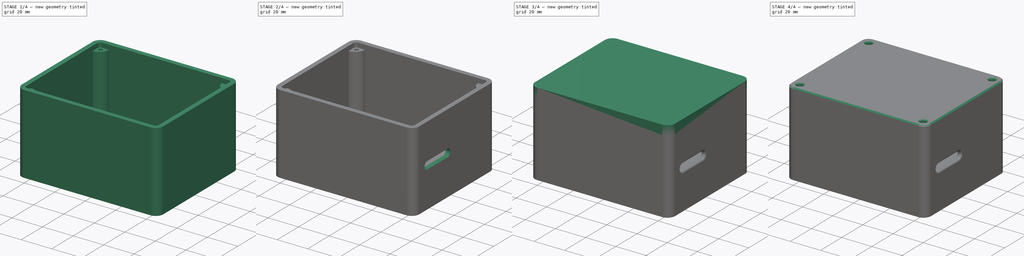
[diagram: build sequence overview — one tinted view per stage of 4, left to right]
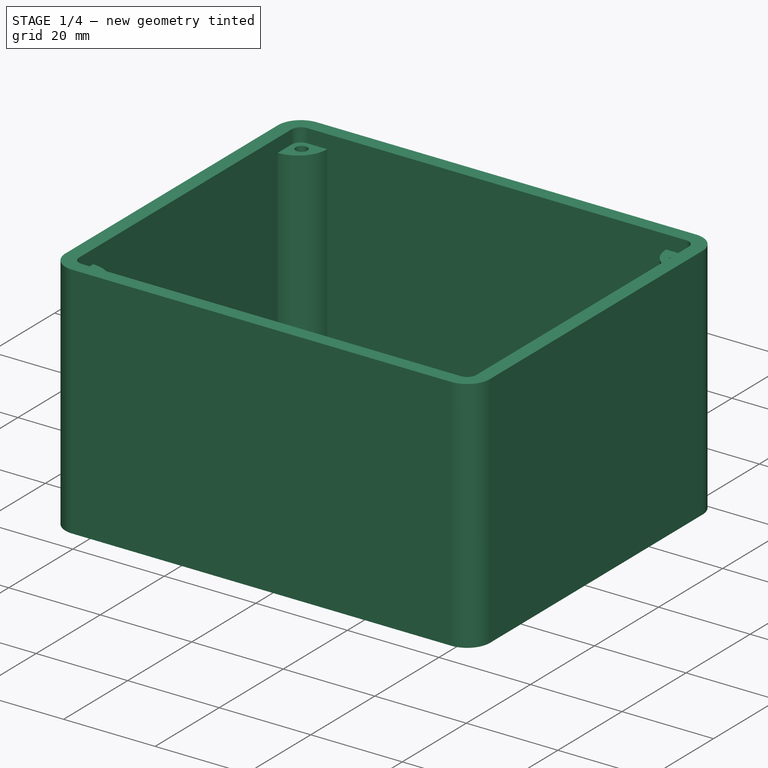
[diagram: stage 1 of 4 — iso view after this stage's code; geometry added in this stage tinted green]
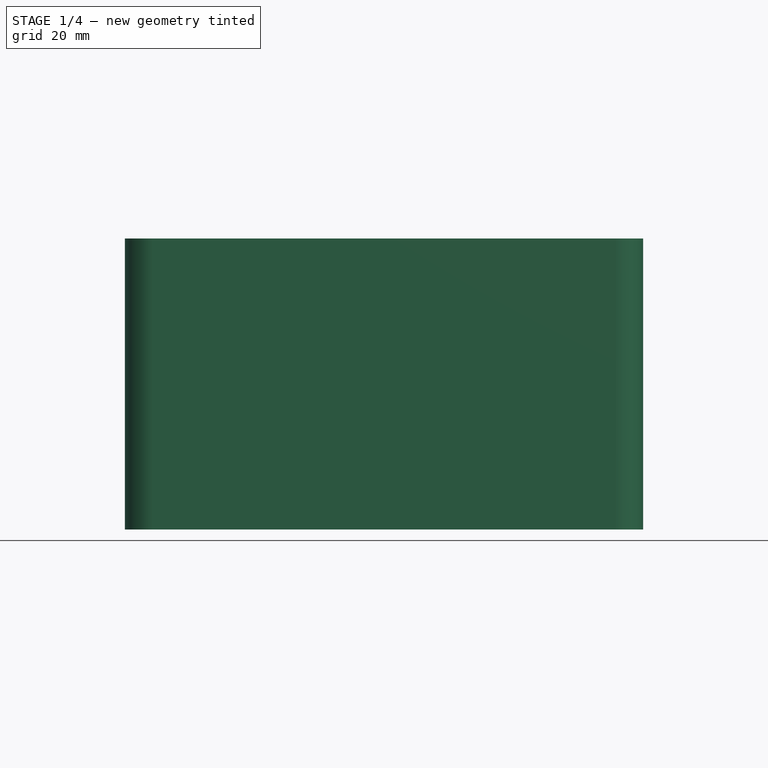
[diagram: stage 1 of 4 — front view after this stage's code; geometry added in this stage tinted green]
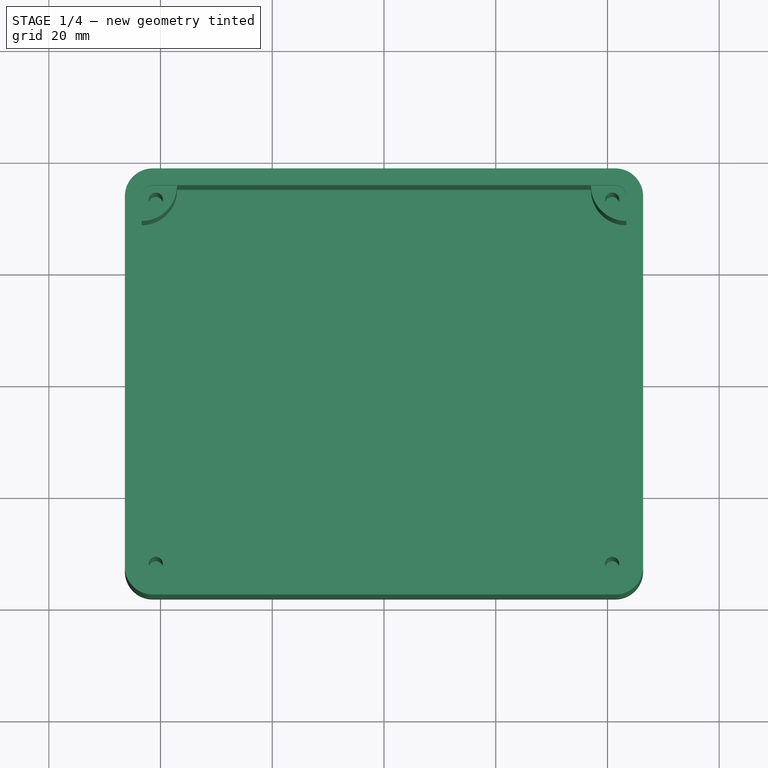
[diagram: stage 1 of 4 — top view after this stage's code; geometry added in this stage tinted green]
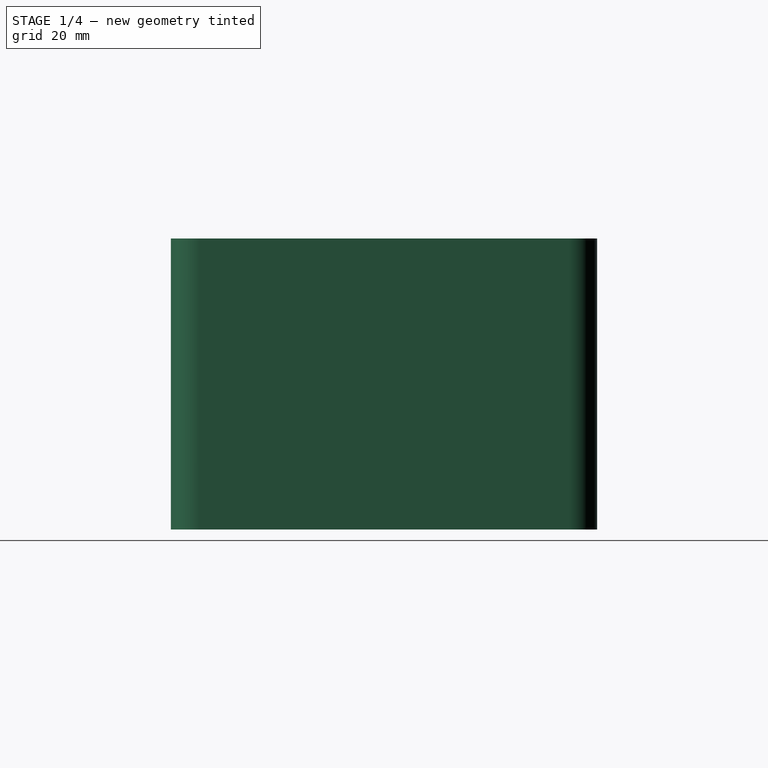
[diagram: stage 1 of 4 — right view after this stage's code; geometry added in this stage tinted green]
FCSTD DOCUMENT  (FreeCAD 0.19R24267 +99 (Git))
Label: electonics_box
License: All rights reserved
LicenseURL: http://en.wikipedia.org/wiki/All_rights_reserved
objects: Sketcher::SketchObject×9, PartDesign::Pad×5, PartDesign::Mirrored×4, PartDesign::Pocket×3, PartDesign::MultiTransform×2, PartDesign::Hole×2, PartDesign::Body×2, Spreadsheet::Sheet×1, PartDesign::Chamfer×1, PartDesign::Fillet×1, App::Part×1
note: 41 computed .brp shape members not serialized (recipe doc carries the construction recipe); baked Part::Feature solids carry a one-line shape summary decoded from their .brp

FEATURE [Spreadsheet::Sheet] Spreadsheet
  cells = A2=box_length; B2(box_length)==B13 + 2 * B7; C2=calculated; A3=box_width; B3(box_width)==B14 + 2 * B7; C3=calculated; A4=box_height; B4(box_height)==B15 + B16 + B7; C4=calculated; A5=outside_radius; B5(outside_radius)==B7 + 2; C5=calculated; A6=inside_radius; B6(inside_radius)==B5 - B7; C6=calculated; A7=box_wall_thickness; B7(box_wall_thickness)=3; A8=hole_diameter; B8(hole_diameter)=2.54; A9=lug_height; B9(lug_height)==B4 - B7 - B16; C9=calculated; A10=lug_radius; B10(lug_radius)==B8 * 2.5; C10=calculated; A11=hole_center_length; B11(hole_center_length)==B13 / 2 - B8; C11=calculated; A12=hole_center_width; B12(hole_center_width)==B14 / 2 - B8; C12=calculated; A13=box_inside_length; B13(box_inside_length)=86.77; A14=box_inside_width; B14(box_inside_width)=70.29000000000001; A15=box_inside_height; B15(box_inside_height)=45.1; A16=box_bottom_thickness; B16(box_bottom_thickness)=4; A18=clearance_sides; B18(clearance_sides)=0.2; A19=clearance_hole; B19(clearance_hole)=4.1; A20=lid_height; B20(lid_height)=6.25; A22=mount_hole_diameter; B22(mount_hole_diameter)=1.27; C22=1.27; A23=mount_hole_lug_height; B23(mount_hole_lug_height)=8; A24=mount_hole_lug_diameter; B24(mount_hole_lug_diameter)==3 * B22; C24=calculated; A25=mount_hole1_x; B25(mount_hole1_x)=0; A26=mount_hole1_y; B26(mount_hole1_y)=32.47; A27=mount_hole2_x; B27(mount_hole2_x)=40.3; A28=mount_hole2_y; B28(mount_hole2_y)=0; A29=mount_hole3_x; B29(mount_hole3_x)=0; A30=mount_hole3_y; B30(mount_hole3_y)=31.3; A31=mount_hole4_x; B31(mount_hole4_x)=40.233; A32=mount_hole4_y; B32(mount_hole4_y)=0
FEATURE [Sketcher::SketchObject] Sketch  label="box outside"
  AttachmentOffset = pos=(0,0,-4) rot=(0,0,1;0rad)
  FullyConstrained = true
  MapMode = 5
  Placement = pos=(0,0,-4) rot=(0,0,1;0rad)
  Support = -> [XY_Plane001]
  expr: .AttachmentOffset.Base.z = -Spreadsheet.box_bottom_thickness
  expr: Constraints[18] = Spreadsheet.outside_radius
  expr: Constraints[17] = Spreadsheet.box_width
  expr: Constraints[16] = Spreadsheet.box_length
  sketch-geometry (8):
    g0: LineSegment StartX=-41.385 StartY=38.145 StartZ=0 EndX=41.385 EndY=38.145 EndZ=0
    g1: LineSegment StartX=46.385 StartY=33.145 StartZ=0 EndX=46.385 EndY=-33.145 EndZ=0
    g2: LineSegment StartX=41.385 StartY=-38.145 StartZ=0 EndX=-41.385 EndY=-38.145 EndZ=0
    g3: LineSegment StartX=-46.385 StartY=-33.145 StartZ=0 EndX=-46.385 EndY=33.145 EndZ=0
    g4: ArcOfCircle CenterX=-41.385 CenterY=33.145 CenterZ=0 NormalX=0 NormalY=0 NormalZ=1 AngleXU=0 Radius=5 StartAngle=1.5708 EndAngle=3.14159
    g5: ArcOfCircle CenterX=41.385 CenterY=33.145 CenterZ=0 NormalX=0 NormalY=0 NormalZ=1 AngleXU=0 Radius=5 StartAngle=0 EndAngle=1.5708
    g6: ArcOfCircle CenterX=41.385 CenterY=-33.145 CenterZ=0 NormalX=0 NormalY=0 NormalZ=1 AngleXU=0 Radius=5 StartAngle=4.71239 EndAngle=6.28319
    g7: ArcOfCircle CenterX=-41.385 CenterY=-33.145 CenterZ=0 NormalX=0 NormalY=0 NormalZ=1 AngleXU=0 Radius=5 StartAngle=3.14159 EndAngle=4.71239
  constraints (19):
    c: Horizontal(g0)
    c: Horizontal(g2)
    c: Vertical(g1)
    c: Vertical(g3)
    c: Tangent(g3,g4) = 1.5708
    c: Tangent(g0,g4) = 1.5708
    c: Tangent(g0,g5) = 1.5708
    c: Tangent(g1,g5) = 1.5708
    c: Tangent(g1,g6) = 1.5708
    c: Tangent(g2,g6) = 1.5708
    c: Tangent(g2,g7) = 1.5708
    c: Tangent(g3,g7) = 1.5708
    c: Equal(g0,g2)
    c: Equal(g3,g1)
    c: Symmetric(g6,g4,g-1)
    c: Equal(g4,g5)
    c: DistanceX(g3,g1) = 92.77
    c: DistanceY(g2,g0) = 76.29
    c: Radius(g4) = 5
FEATURE [PartDesign::Pad] Pad
  Direction = (1,1,1)
  Length = 52.1
  Length2 = 100
  Profile = -> Sketch
  Type = 0
  expr: Length = Spreadsheet.box_height
FEATURE [Sketcher::SketchObject] Sketch001  label="inside"
  FullyConstrained = true
  MapMode = 5
  Support = -> [XY_Plane001]
  expr: Constraints[18] = Spreadsheet.box_inside_width
  expr: Constraints[17] = Spreadsheet.box_inside_length
  expr: Constraints[16] = Spreadsheet.inside_radius
  sketch-geometry (8):
    g0: LineSegment StartX=-41.385 StartY=35.145 StartZ=0 EndX=41.385 EndY=35.145 EndZ=0
    g1: LineSegment StartX=43.385 StartY=33.145 StartZ=0 EndX=43.385 EndY=-33.145 EndZ=0
    g2: LineSegment StartX=41.385 StartY=-35.145 StartZ=0 EndX=-41.385 EndY=-35.145 EndZ=0
    g3: LineSegment StartX=-43.385 StartY=-33.145 StartZ=0 EndX=-43.385 EndY=33.145 EndZ=0
    g4: ArcOfCircle CenterX=-41.385 CenterY=33.145 CenterZ=0 NormalX=0 NormalY=0 NormalZ=1 AngleXU=0 Radius=2 StartAngle=1.5708 EndAngle=3.14159
    g5: ArcOfCircle CenterX=41.385 CenterY=33.145 CenterZ=0 NormalX=0 NormalY=0 NormalZ=1 AngleXU=0 Radius=2 StartAngle=8e-16 EndAngle=1.5708
    g6: ArcOfCircle CenterX=41.385 CenterY=-33.145 CenterZ=0 NormalX=0 NormalY=0 NormalZ=1 AngleXU=0 Radius=2 StartAngle=4.71239 EndAngle=6.28319
    g7: ArcOfCircle CenterX=-41.385 CenterY=-33.145 CenterZ=0 NormalX=0 NormalY=0 NormalZ=1 AngleXU=0 Radius=2 StartAngle=3.14159 EndAngle=4.71239
  constraints (19):
    c: Horizontal(g0)
    c: Horizontal(g2)
    c: Vertical(g1)
    c: Vertical(g3)
    c: Tangent(g3,g4) = 1.5708
    c: Tangent(g0,g4) = 1.5708
    c: Tangent(g0,g5) = 1.5708
    c: Tangent(g1,g5) = 1.5708
    c: Tangent(g1,g6) = 1.5708
    c: Tangent(g2,g6) = 1.5708
    c: Tangent(g2,g7) = 1.5708
    c: Tangent(g3,g7) = 1.5708
    c: Equal(g0,g2)
    c: Equal(g3,g1)
    c: Equal(g4,g5)
    c: Symmetric(g4,g6,g-1)
    c: Radius(g4) = 2
    c: DistanceX(g3,g1) = 86.77
    c: DistanceY(g2,g0) = 70.29
FEATURE [PartDesign::Pocket] Pocket  label="Inside Pocket"
  BaseFeature = -> Pad
  Length = 5
  Length2 = 100
  Profile = -> Sketch001
  Reversed = true
  Type = 1
FEATURE [Sketcher::SketchObject] Sketch002  label="box Lugs for lid"
  FullyConstrained = true
  MapMode = 5
  Support = -> [XY_Plane001]
  expr: Constraints[9] = Spreadsheet.hole_center_length
  expr: Constraints[8] = Spreadsheet.hole_diameter
  expr: Constraints[7] = Spreadsheet.hole_diameter
  expr: Constraints[6] = Spreadsheet.hole_diameter
  expr: Constraints[10] = Spreadsheet.hole_center_width
  expr: Constraints[5] = Spreadsheet.lug_radius
  sketch-geometry (4):
    g0: LineSegment StartX=-37.035 StartY=35.145 StartZ=0 EndX=-43.385 EndY=35.145 EndZ=0
    g1: LineSegment StartX=-43.385 StartY=35.145 StartZ=0 EndX=-43.385 EndY=28.795 EndZ=0
    g2: ArcOfCircle CenterX=-43.385 CenterY=35.145 CenterZ=0 NormalX=0 NormalY=0 NormalZ=1 AngleXU=0 Radius=6.35 StartAngle=4.71239 EndAngle=6.28319
    g3: Circle CenterX=-40.845 CenterY=32.605 CenterZ=0 NormalX=0 NormalY=0 NormalZ=1 AngleXU=0 Radius=1.27
  constraints (12):
    c: Horizontal(g0)
    c: Coincident(g0,g1)
    c: Coincident(g2,g0)
    c: Coincident(g2,g1)
    c: Coincident(g2,g0)
    c: Radius(g2) = 6.35
    c: Diameter(g3) = 2.54
    c: DistanceY(g3,g0) = 2.54
    c: DistanceX(g0,g3) = 2.54
    c: DistanceX(g3,g-1) = 40.845
    c: DistanceY(g-1,g3) = 32.605
    c: Perpendicular(g0,g1)
FEATURE [PartDesign::Pad] Pad001
  BaseFeature = -> Pocket
  Direction = (1,1,1)
  Length = 45.1
  Length2 = 100
  Profile = -> Sketch002
  Type = 0
  expr: Length = Spreadsheet.lug_height
FEATURE [PartDesign::Mirrored] Mirrored  label="Mirror Left to Right"
  MirrorPlane = -> Sketch002 [V_Axis]
FEATURE [PartDesign::Mirrored] Mirrored001  label="Mirror Top to Bottom"
  MirrorPlane = -> Sketch002 [H_Axis]
FEATURE [PartDesign::MultiTransform] MultiTransform  label="duplicate lugs"
  BaseFeature = -> Pad001
  Originals = -> [Pad001]
  Transformations = -> [Mirrored,Mirrored001]
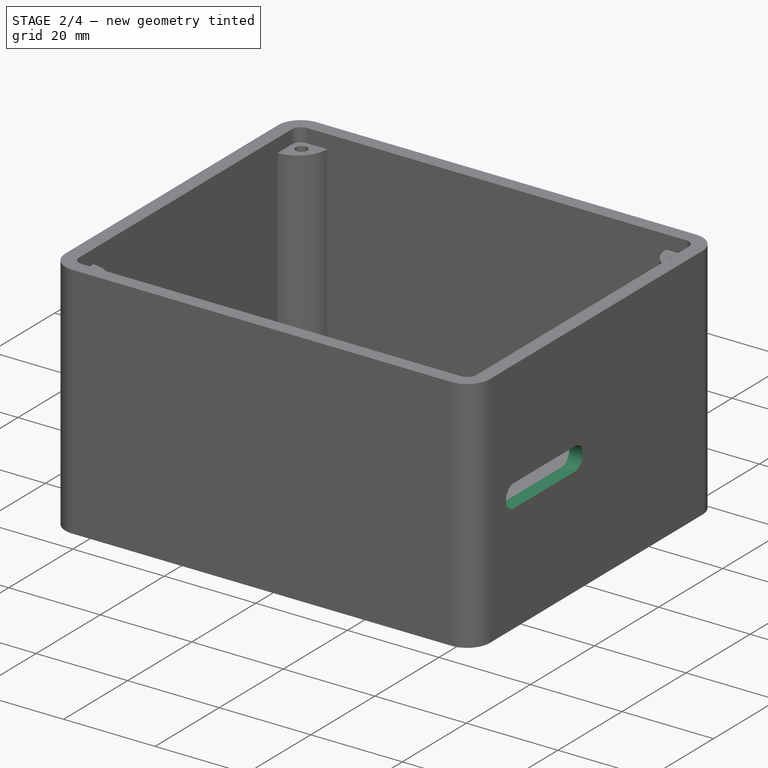
[diagram: stage 2 of 4 — iso view after this stage's code; geometry added in this stage tinted green]
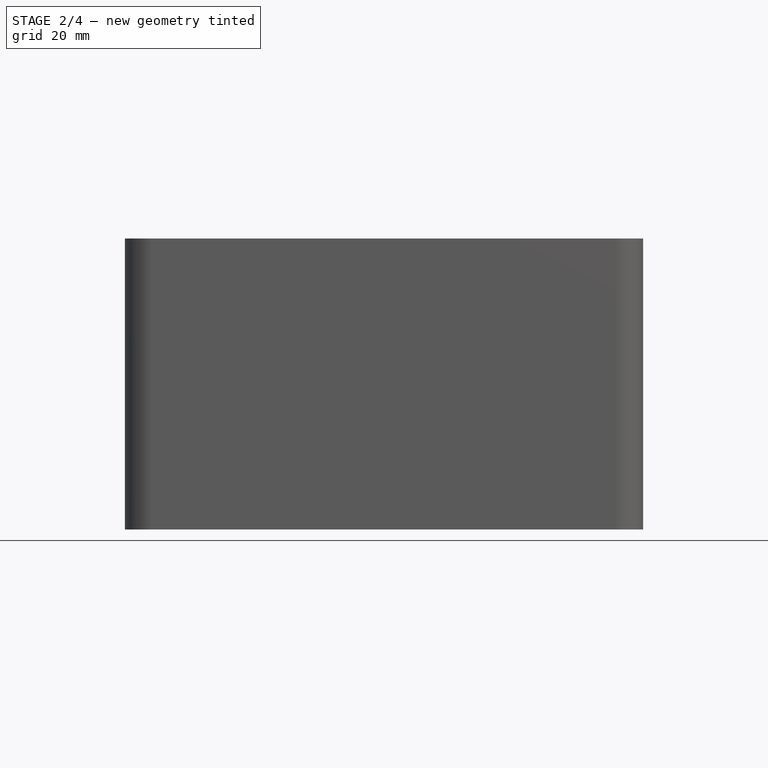
[diagram: stage 2 of 4 — front view after this stage's code; geometry added in this stage tinted green]
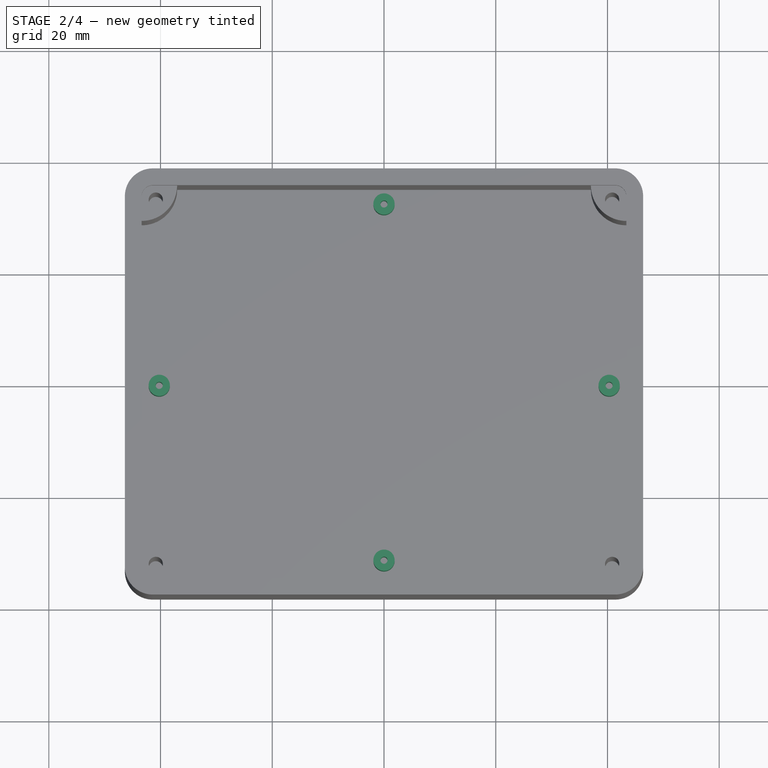
[diagram: stage 2 of 4 — top view after this stage's code; geometry added in this stage tinted green]
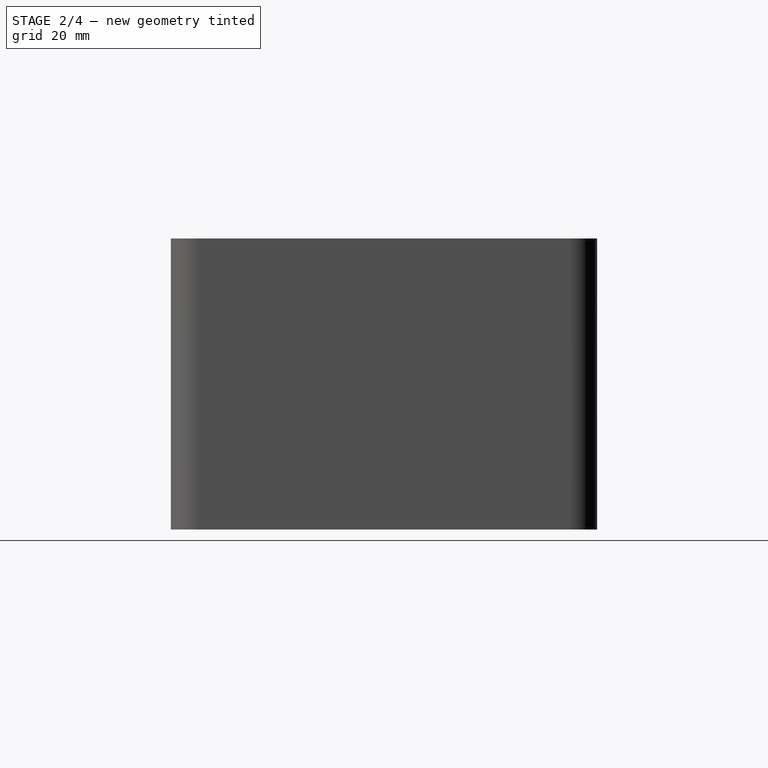
[diagram: stage 2 of 4 — right view after this stage's code; geometry added in this stage tinted green]
FEATURE [Sketcher::SketchObject] Sketch006  label="PCB mount Screw Holes"
  FullyConstrained = true
  MapMode = 5
  Support = -> [XY_Plane001]
  expr: Constraints[11] = Spreadsheet.mount_hole1_x
  expr: Constraints[10] = Spreadsheet.mount_hole_lug_diameter
  expr: Constraints[2] = Spreadsheet.mount_hole4_y
  expr: Constraints[5] = Spreadsheet.mount_hole2_y
  expr: Constraints[9] = Spreadsheet.mount_hole_lug_diameter
  expr: Constraints[4] = Spreadsheet.mount_hole4_x
  expr: Constraints[3] = Spreadsheet.mount_hole2_x
  expr: Constraints[7] = Spreadsheet.mount_hole_lug_diameter
  expr: Constraints[0] = Spreadsheet.mount_hole1_y
  expr: Constraints[6] = Spreadsheet.mount_hole3_x
  expr: Constraints[8] = Spreadsheet.mount_hole_lug_diameter
  expr: Constraints[1] = Spreadsheet.mount_hole3_y
  sketch-geometry (4):
    g0: Circle CenterX=0 CenterY=32.47 CenterZ=0 NormalX=0 NormalY=0 NormalZ=1 AngleXU=0 Radius=1.905
    g1: Circle CenterX=0 CenterY=-31.3 CenterZ=0 NormalX=0 NormalY=0 NormalZ=1 AngleXU=0 Radius=1.905
    g2: Circle CenterX=40.3 CenterY=0 CenterZ=0 NormalX=0 NormalY=0 NormalZ=1 AngleXU=0 Radius=1.905
    g3: Circle CenterX=-40.233 CenterY=0 CenterZ=0 NormalX=0 NormalY=0 NormalZ=1 AngleXU=0 Radius=1.905
  constraints (12):
    c: DistanceY(g-1,g0) = 32.47
    c: DistanceY(g1,g-1) = 31.3
    c: DistanceY(g-1,g3) = 0
    c: DistanceX(g-1,g2) = 40.3
    c: DistanceX(g3,g-1) = 40.233
    c: DistanceY(g-1,g2) = 0
    c: DistanceX(g1,g-1) = 0
    c: Diameter(g2) = 3.81
    c: Diameter(g3) = 3.81
    c: Diameter(g1) = 3.81
    c: Diameter(g0) = 3.81
    c: DistanceX(g-1,g0) = 0
FEATURE [PartDesign::Pad] Pad004  label="Extend PCB Mount Lugs"
  BaseFeature = -> MultiTransform
  Direction = (1,1,1)
  Length = 8
  Length2 = 100
  Profile = -> Sketch006
  Type = 0
  expr: Length = Spreadsheet.mount_hole_lug_height
FEATURE [PartDesign::Hole] Hole001
  BaseFeature = -> Pad004
  Depth = 8
  DepthType = 0
  Diameter = 1.27
  DrillForDepth = false
  DrillPoint = 0
  DrillPointAngle = 118
  HoleCutCountersinkAngle = 90
  HoleCutCustomValues = true
  HoleCutDepth = 8
  HoleCutDiameter = 1.27
  HoleCutType = 0
  ModelActualThread = false
  Profile = -> Sketch006
  Reversed = true
  Tapered = false
  TaperedAngle = 90
  ThreadAngle = 0
  ThreadClass = 0
  ThreadCutOffInner = 0
  ThreadCutOffOuter = 0
  ThreadDirection = 0
  ThreadFit = 0
  ThreadPitch = 0
  ThreadSize = 0
  ThreadType = 0
  Threaded = false
  expr: Depth = Spreadsheet.mount_hole_lug_height
  expr: Diameter = Spreadsheet.mount_hole_diameter
  expr: HoleCutDepth = Spreadsheet.mount_hole_lug_height
  expr: HoleCutDiameter = Spreadsheet.mount_hole_diameter
FEATURE [Sketcher::SketchObject] Sketch007  label="Hole for BME Air Flow"
  AttachmentOffset = pos=(0,0,46.385) rot=(1,0,0;0rad)
  FullyConstrained = true
  MapMode = 5
  Placement = pos=(46.385,-1.03e-14,1.03e-14) rot=(0.57735,0.57735,0.57735;2.0944rad)
  Support = -> [YZ_Plane001]
  expr: .AttachmentOffset.Rotation.Axis.x = Spreadsheet.box_width / 2
  expr: .AttachmentOffset.Base.x = 0
  expr: .AttachmentOffset.Base.z = Spreadsheet.box_length / 2
  expr: .AttachmentOffset.Base.y = 0
  expr: Constraints[10] = Spreadsheet.mount_hole_lug_height + 14.22
  sketch-geometry (5):
    g0: ArcOfCircle CenterX=-25.69 CenterY=22.22 CenterZ=0 NormalX=0 NormalY=0 NormalZ=1 AngleXU=0 Radius=2.5 StartAngle=1.5708 EndAngle=4.71239
    g1: ArcOfCircle CenterX=-6.69 CenterY=22.22 CenterZ=0 NormalX=0 NormalY=0 NormalZ=1 AngleXU=0 Radius=2.5 StartAngle=4.71239 EndAngle=7.85398
    g2: LineSegment StartX=-25.69 StartY=19.72 StartZ=0 EndX=-6.69 EndY=19.72 EndZ=0
    g3: LineSegment StartX=-25.69 StartY=24.72 StartZ=0 EndX=-6.69 EndY=24.72 EndZ=0
    g4: GeomPoint X=-16.19 Y=22.22 Z=0
  constraints (11):
    c: Tangent(g0,g3) = 1.5708
    c: Tangent(g0,g2) = -1.5708
    c: Tangent(g2,g1) = -1.5708
    c: Tangent(g3,g1) = 1.5708
    c: Horizontal(g2)
    c: Equal(g0,g1)
    c: Symmetric(g0,g1,g4)
    c: DistanceX(g0,g1) = 19
    c: DistanceY(g0,g0) = 5
    c: DistanceX(g4,g-1) = 16.19
    c: DistanceY(g-1,g4) = 22.22
FEATURE [PartDesign::Pocket] Pocket002  label="Pocket BME Air Flow"
  BaseFeature = -> Hole001
  Length = 0
  Length2 = 100
  Profile = -> Sketch007
  Type = 2
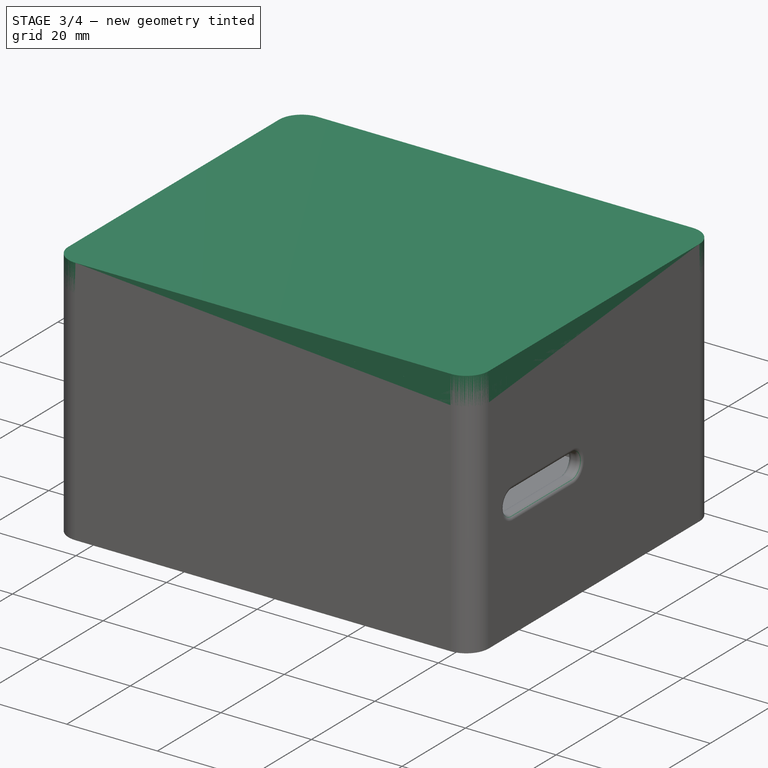
[diagram: stage 3 of 4 — iso view after this stage's code; geometry added in this stage tinted green]
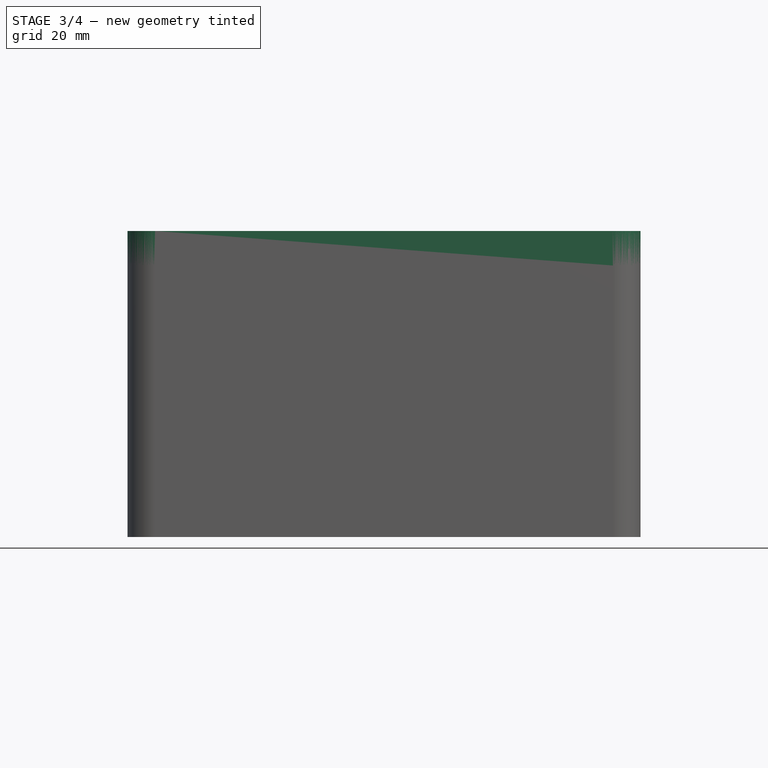
[diagram: stage 3 of 4 — front view after this stage's code; geometry added in this stage tinted green]
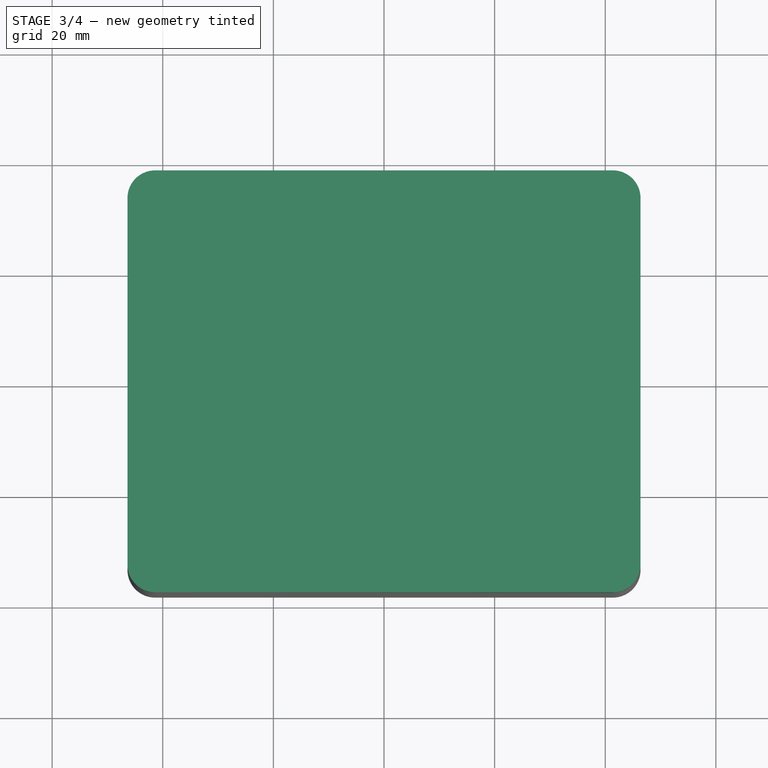
[diagram: stage 3 of 4 — top view after this stage's code; geometry added in this stage tinted green]
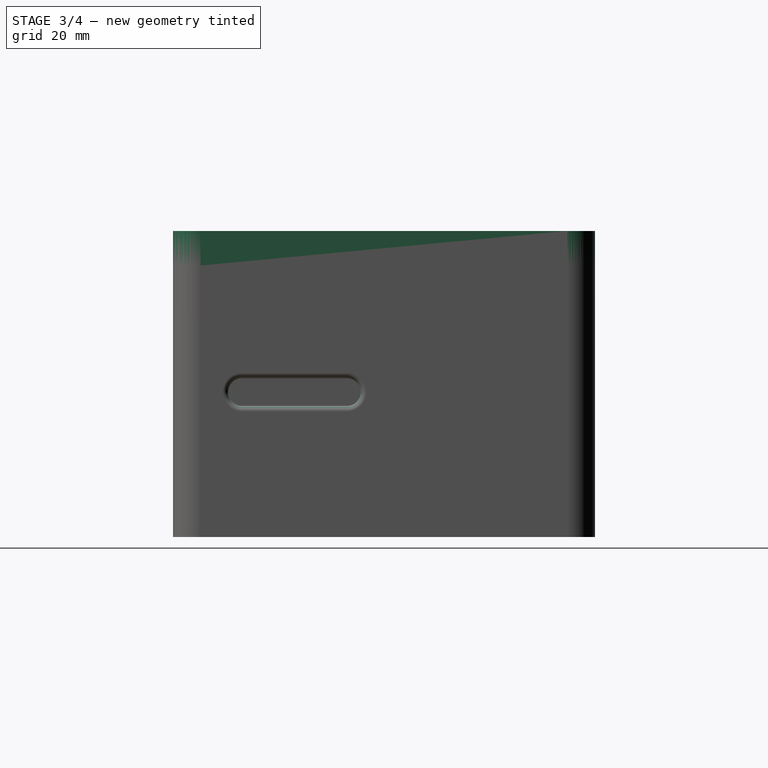
[diagram: stage 3 of 4 — right view after this stage's code; geometry added in this stage tinted green]
FEATURE [Sketcher::SketchObject] Sketch003  label="lid top"
  AttachmentOffset = pos=(0,0,45.1) rot=(0,0,1;0rad)
  FullyConstrained = true
  MapMode = 5
  Placement = pos=(0,0,45.1) rot=(0,0,1;0rad)
  Support = -> [XY_Plane002]
  expr: Constraints[15] = Spreadsheet.box_length
  expr: Constraints[16] = Spreadsheet.box_width
  expr: Constraints[18] = Spreadsheet.outside_radius
  expr: .AttachmentOffset.Base.z = Spreadsheet.box_inside_height
  sketch-geometry (8):
    g0: LineSegment StartX=-41.385 StartY=38.145 StartZ=0 EndX=41.385 EndY=38.145 EndZ=0
    g1: LineSegment StartX=46.385 StartY=33.145 StartZ=0 EndX=46.385 EndY=-33.145 EndZ=0
    g2: LineSegment StartX=41.385 StartY=-38.145 StartZ=0 EndX=-41.385 EndY=-38.145 EndZ=0
    g3: LineSegment StartX=-46.385 StartY=-33.145 StartZ=0 EndX=-46.385 EndY=33.145 EndZ=0
    g4: ArcOfCircle CenterX=-41.385 CenterY=33.145 CenterZ=0 NormalX=0 NormalY=0 NormalZ=1 AngleXU=0 Radius=5 StartAngle=1.5708 EndAngle=3.14159
    g5: ArcOfCircle CenterX=41.385 CenterY=33.145 CenterZ=0 NormalX=0 NormalY=0 NormalZ=1 AngleXU=0 Radius=5 StartAngle=-9e-16 EndAngle=1.5708
    g6: ArcOfCircle CenterX=41.385 CenterY=-33.145 CenterZ=0 NormalX=0 NormalY=0 NormalZ=1 AngleXU=0 Radius=5 StartAngle=4.71239 EndAngle=6.28319
    g7: ArcOfCircle CenterX=-41.385 CenterY=-33.145 CenterZ=0 NormalX=0 NormalY=0 NormalZ=1 AngleXU=0 Radius=5 StartAngle=3.14159 EndAngle=4.71239
  constraints (19):
    c: Horizontal(g0)
    c: Horizontal(g2)
    c: Vertical(g1)
    c: Vertical(g3)
    c: Tangent(g3,g4) = 1.5708
    c: Tangent(g0,g4) = 1.5708
    c: Tangent(g0,g5) = 1.5708
    c: Tangent(g1,g5) = 1.5708
    c: Tangent(g1,g6) = 1.5708
    c: Tangent(g2,g6) = 1.5708
    c: Tangent(g2,g7) = 1.5708
    c: Tangent(g3,g7) = 1.5708
    c: Equal(g0,g2)
    c: Equal(g1,g3)
    c: Equal(g4,g5)
    c: DistanceX(g3,g1) = 92.77
    c: DistanceY(g2,g0) = 76.29
    c: Symmetric(g4,g6,g-1)
    c: Radius(g4) = 5
FEATURE [PartDesign::Pad] Pad002  label="pad lid top"
  Direction = (1,1,1)
  Length = 6.25
  Length2 = 100
  Profile = -> Sketch003
  Type = 0
  expr: Length = Spreadsheet.lid_height
FEATURE [Sketcher::SketchObject] Sketch008  label="Hole for Charge Jack"
  AttachmentOffset = pos=(0,0,-46.385) rot=(0,0,1;0rad)
  FullyConstrained = true
  MapMode = 5
  Placement = pos=(-46.385,1.03e-14,-1.03e-14) rot=(0.57735,0.57735,0.57735;2.0944rad)
  Support = -> [YZ_Plane001]
  expr: .AttachmentOffset.Base.x = 0
  expr: .AttachmentOffset.Base.z = -Spreadsheet.box_length / 2
  sketch-geometry (1):
    g0: Circle CenterX=-13.1 CenterY=12.2 CenterZ=0 NormalX=0 NormalY=0 NormalZ=1 AngleXU=0 Radius=12
  constraints (3):
    c: Radius(g0) = 12
    c: DistanceX(g-1,g0) = -13.1
    c: DistanceY(g-1,g0) = 12.2
FEATURE [PartDesign::Hole] Hole002  label="Charge Jack Hole"
  BaseFeature = -> Pocket002
  Depth = 3
  DepthType = 0
  Diameter = 11
  DrillForDepth = false
  DrillPoint = 0
  DrillPointAngle = 118
  HoleCutCountersinkAngle = 90
  HoleCutCustomValues = false
  HoleCutDepth = 0
  HoleCutDiameter = 12
  HoleCutType = 0
  ModelActualThread = false
  Profile = -> Sketch008
  Reversed = true
  Tapered = false
  TaperedAngle = 90
  ThreadAngle = 0
  ThreadClass = 0
  ThreadCutOffInner = 0
  ThreadCutOffOuter = 0
  ThreadDirection = 0
  ThreadFit = 0
  ThreadPitch = 0
  ThreadSize = 0
  ThreadType = 0
  Threaded = false
  expr: Depth = Spreadsheet.box_wall_thickness
FEATURE [PartDesign::Body] Body001  label="lid"
  Group = -> [Sketch003,Pad002,Sketch004,Pad003,Sketch009,Pocket003,MultiTransform001,Mirrored002,Mirrored003,Chamfer001]
  Origin = -> Origin002
  Placement = pos=(0,0,10) rot=(0,0,1;0rad)
  Tip = -> Chamfer001
FEATURE [PartDesign::Fillet] Fillet001
  Base = -> Hole002 [Edge5,Edge30,Edge36,Edge39,Edge38,Edge37,Edge66,Edge63,Edge64,Edge65]
  BaseFeature = -> Hole002
  Radius = 1
  SupportTransform = false
FEATURE [PartDesign::Body] Body  label="box"
  Group = -> [Sketch,Pad,Sketch001,Pocket,Sketch002,Pad001,MultiTransform,Mirrored,Mirrored001,Sketch006,Pad004,Hole001,Sketch007,Pocket002,Sketch008,Hole002,Fillet001]
  Origin = -> Origin001
  Tip = -> Fillet001
FEATURE [App::Part] Part
  Group = -> [Body]
  Origin = -> Origin
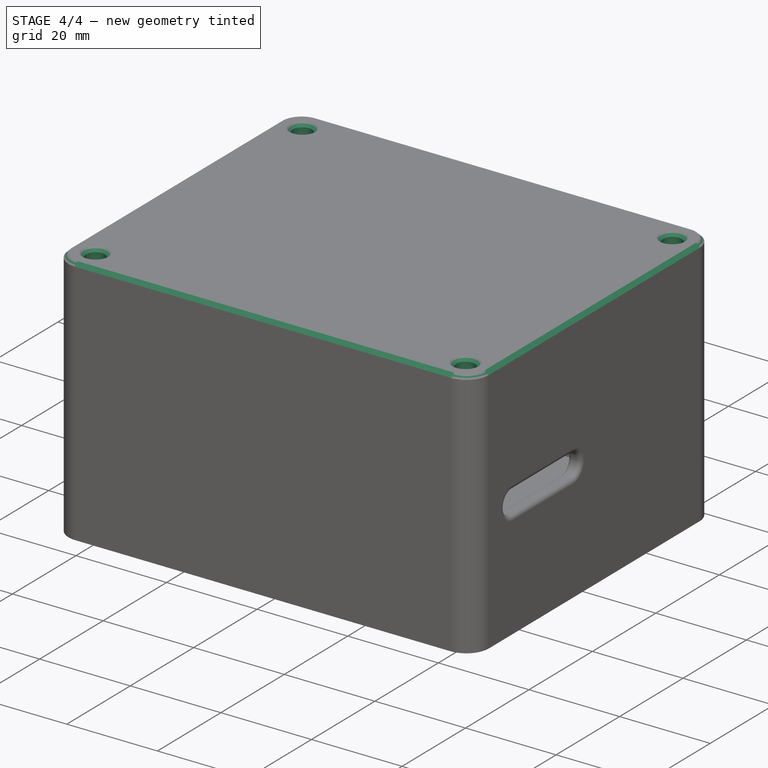
[diagram: stage 4 of 4 — iso view after this stage's code; geometry added in this stage tinted green]
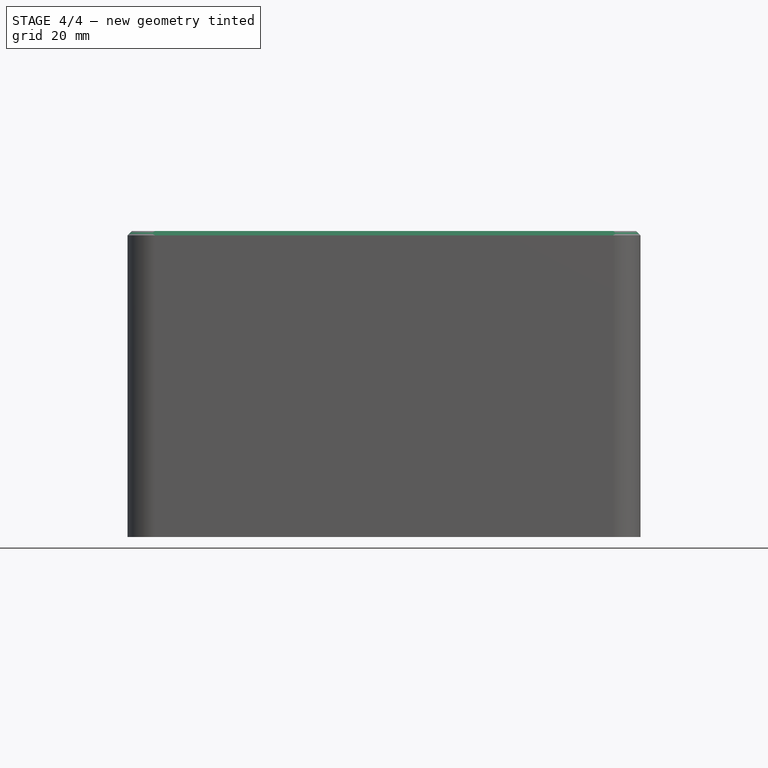
[diagram: stage 4 of 4 — front view after this stage's code; geometry added in this stage tinted green]
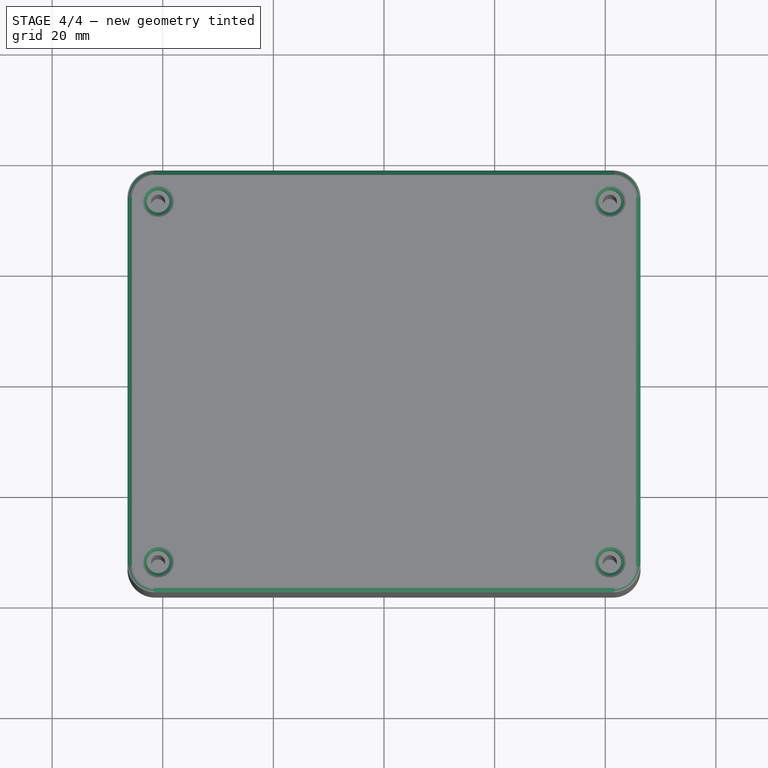
[diagram: stage 4 of 4 — top view after this stage's code; geometry added in this stage tinted green]
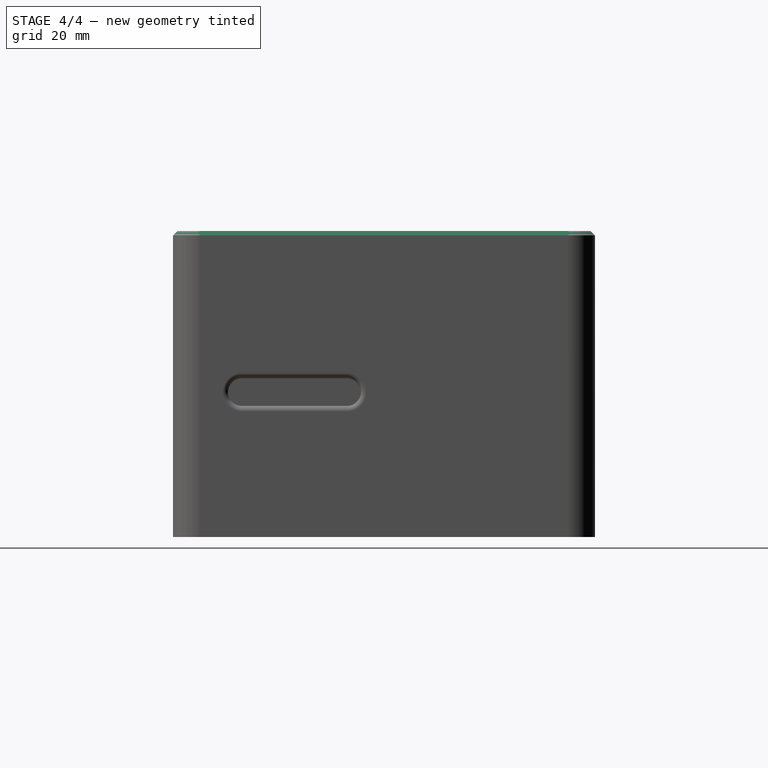
[diagram: stage 4 of 4 — right view after this stage's code; geometry added in this stage tinted green]
FEATURE [Sketcher::SketchObject] Sketch004  label="lid inside lip"
  AttachmentOffset = pos=(0,0,45.1) rot=(0,0,1;0rad)
  FullyConstrained = true
  MapMode = 5
  Placement = pos=(0,0,45.1) rot=(0,0,1;0rad)
  Support = -> [XY_Plane002]
  expr: Constraints[15] = Spreadsheet.box_inside_length - Spreadsheet.clearance_sides
  expr: Constraints[16] = Spreadsheet.box_inside_width - Spreadsheet.clearance_sides
  expr: Constraints[18] = Spreadsheet.inside_radius
  expr: .AttachmentOffset.Base.z = Spreadsheet.box_inside_height
  sketch-geometry (8):
    g0: LineSegment StartX=-41.285 StartY=35.045 StartZ=0 EndX=41.285 EndY=35.045 EndZ=0
    g1: LineSegment StartX=43.285 StartY=33.045 StartZ=0 EndX=43.285 EndY=-33.045 EndZ=0
    g2: LineSegment StartX=41.285 StartY=-35.045 StartZ=0 EndX=-41.285 EndY=-35.045 EndZ=0
    g3: LineSegment StartX=-43.285 StartY=-33.045 StartZ=0 EndX=-43.285 EndY=33.045 EndZ=0
    g4: ArcOfCircle CenterX=-41.285 CenterY=33.045 CenterZ=0 NormalX=0 NormalY=0 NormalZ=1 AngleXU=0 Radius=2 StartAngle=1.5708 EndAngle=3.14159
    g5: ArcOfCircle CenterX=41.285 CenterY=33.045 CenterZ=0 NormalX=0 NormalY=0 NormalZ=1 AngleXU=0 Radius=2 StartAngle=3e-16 EndAngle=1.5708
    g6: ArcOfCircle CenterX=41.285 CenterY=-33.045 CenterZ=0 NormalX=0 NormalY=0 NormalZ=1 AngleXU=0 Radius=2 StartAngle=4.71239 EndAngle=6.28319
    g7: ArcOfCircle CenterX=-41.285 CenterY=-33.045 CenterZ=0 NormalX=0 NormalY=0 NormalZ=1 AngleXU=0 Radius=2 StartAngle=3.14159 EndAngle=4.71239
  constraints (19):
    c: Horizontal(g0)
    c: Horizontal(g2)
    c: Vertical(g1)
    c: Vertical(g3)
    c: Tangent(g3,g4) = 1.5708
    c: Tangent(g0,g4) = 1.5708
    c: Tangent(g0,g5) = 1.5708
    c: Tangent(g1,g5) = 1.5708
    c: Tangent(g1,g6) = 1.5708
    c: Tangent(g2,g6) = 1.5708
    c: Tangent(g2,g7) = 1.5708
    c: Tangent(g3,g7) = 1.5708
    c: Equal(g0,g2)
    c: Equal(g3,g1)
    c: Equal(g4,g5)
    c: DistanceX(g3,g1) = 86.57
    c: DistanceY(g2,g0) = 70.09
    c: Symmetric(g4,g6,g-1)
    c: Radius(g4) = 2
FEATURE [PartDesign::Pad] Pad003  label="pad lid inner lip"
  BaseFeature = -> Pad002
  Direction = (1,1,1)
  Length = 2.8
  Length2 = 100
  Profile = -> Sketch004
  Reversed = true
  Type = 0
  expr: Length = Spreadsheet.box_wall_thickness - Spreadsheet.clearance_sides
FEATURE [Sketcher::SketchObject] Sketch009  label="Lid Hole"
  AttachmentOffset = pos=(0,0,48) rot=(0,0,1;0rad)
  FullyConstrained = true
  MapMode = 5
  Placement = pos=(0,0,48) rot=(0,0,1;0rad)
  Support = -> [XY_Plane002]
  expr: Constraints[0] = Spreadsheet.clearance_hole
  expr: Constraints[1] = Spreadsheet.hole_center_length
  expr: Constraints[2] = Spreadsheet.hole_center_width
  expr: .AttachmentOffset.Base.x = 0
  expr: .AttachmentOffset.Base.z = Spreadsheet.box_height - Spreadsheet.clearance_hole
  sketch-geometry (1):
    g0: Circle CenterX=-40.845 CenterY=32.605 CenterZ=0 NormalX=0 NormalY=0 NormalZ=1 AngleXU=0 Radius=2.05
  constraints (3):
    c: Diameter(g0) = 4.1
    c: DistanceX(g0,g-1) = 40.845
    c: DistanceY(g-1,g0) = 32.605
FEATURE [PartDesign::Pocket] Pocket003  label="Lid Hole Pocket"
  BaseFeature = -> Pad003
  Length = 12.5
  Length2 = 100
  Midplane = true
  Profile = -> Sketch009
  Type = 1
  expr: Length = Spreadsheet.lid_height * 2
FEATURE [PartDesign::Mirrored] Mirrored002  label="lid hole mirror right"
  MirrorPlane = -> Sketch009 [V_Axis]
FEATURE [PartDesign::Mirrored] Mirrored003  label="lid hole mirror down"
  MirrorPlane = -> Sketch009 [H_Axis]
FEATURE [PartDesign::MultiTransform] MultiTransform001
  BaseFeature = -> Pocket003
  Originals = -> [Pocket003]
  Transformations = -> [Mirrored002,Mirrored003]
FEATURE [PartDesign::Chamfer] Chamfer001
  Angle = 45
  Base = -> MultiTransform001 [Edge32,Edge31,Edge29,Face5]
  BaseFeature = -> MultiTransform001
  ChamferType = 0
  FlipDirection = false
  Size = 0.8
  Size2 = 1
  SupportTransform = false
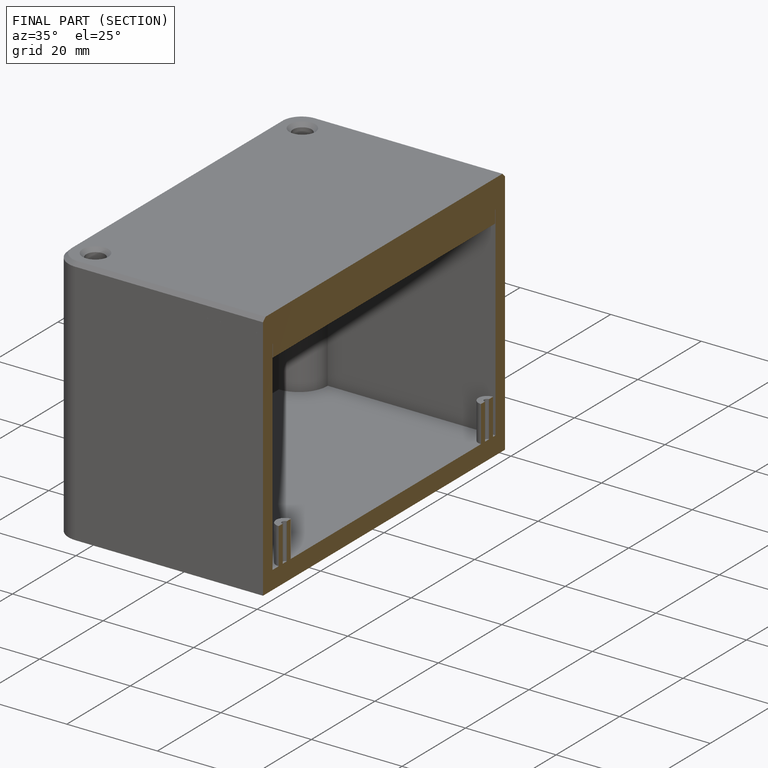
[diagram: finished part — half-section view (interior)]
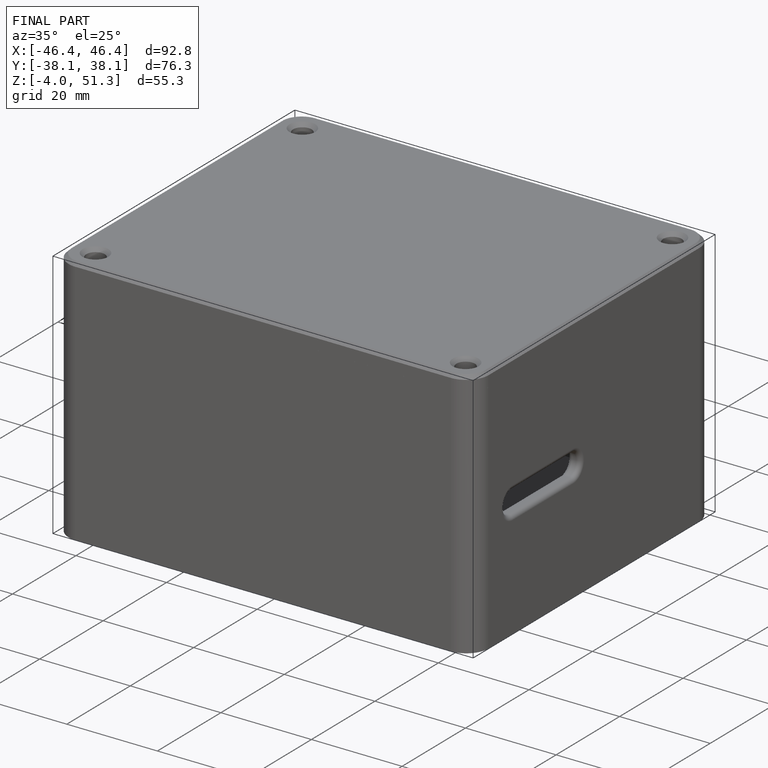
[diagram: finished part — iso view with bounding-box wireframe]
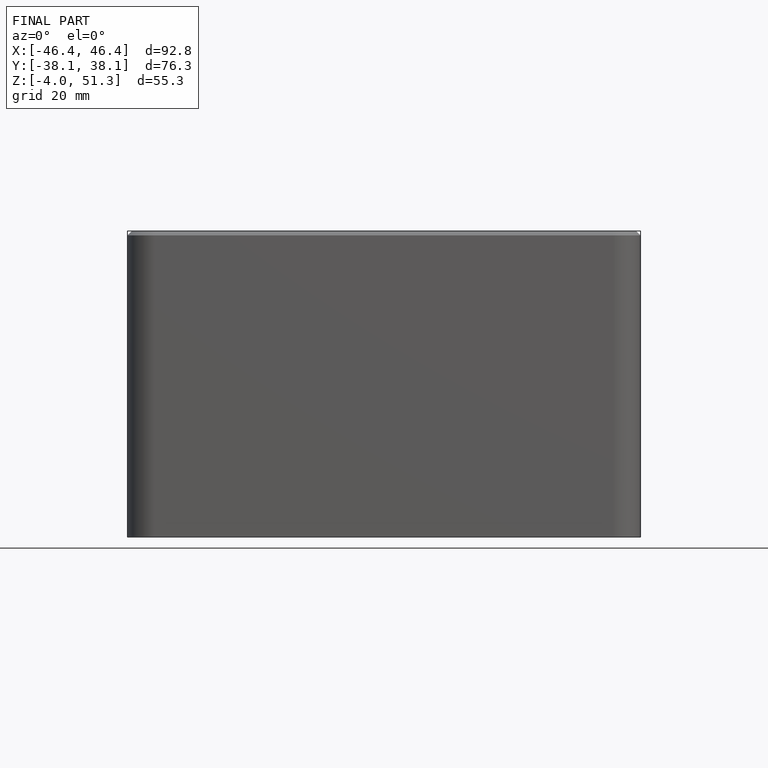
[diagram: finished part — front view with bounding-box wireframe]
